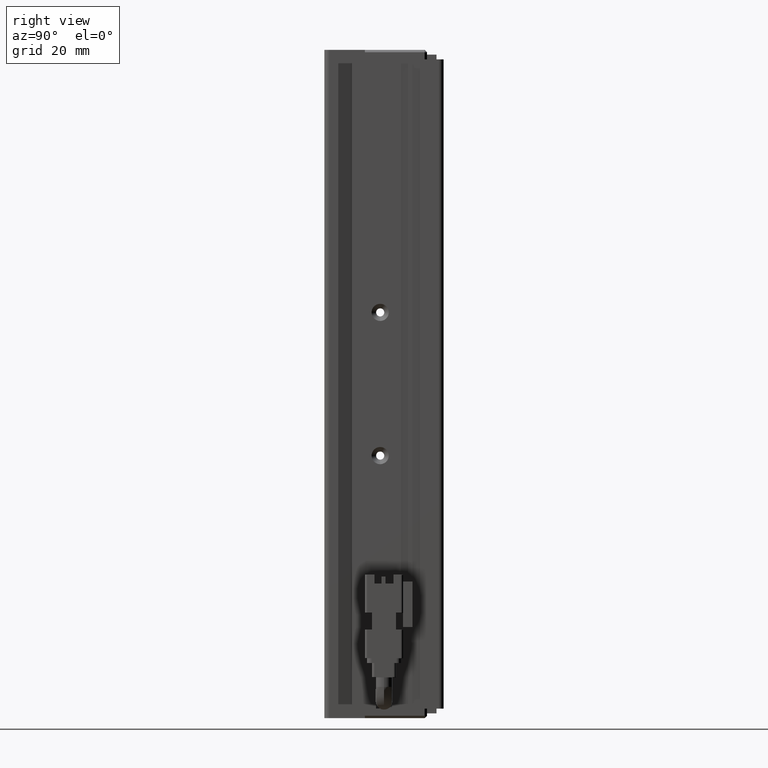
[diagram: clean part render]
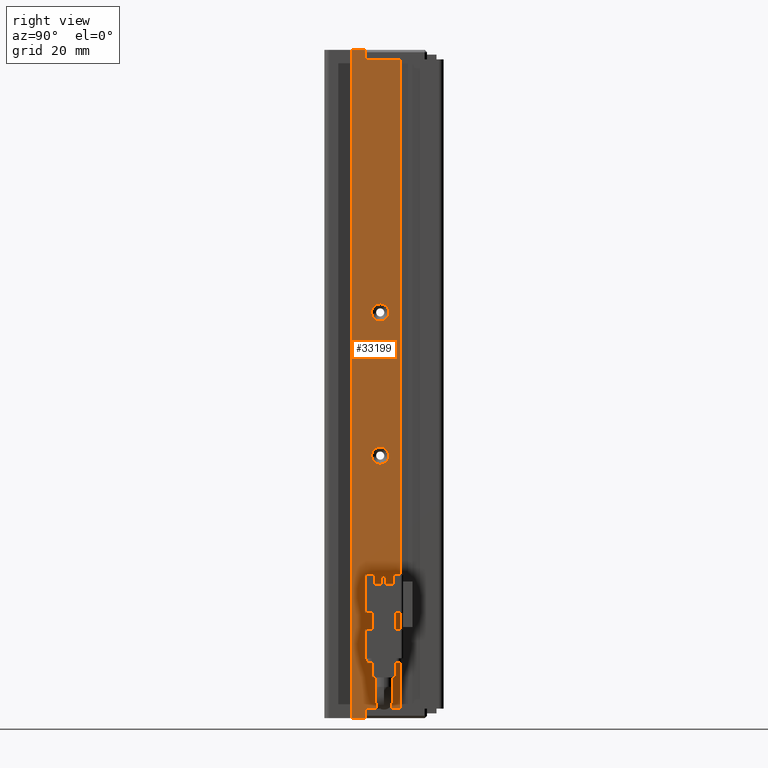
[diagram: same view with one face highlighted and labeled with its STEP entity id]
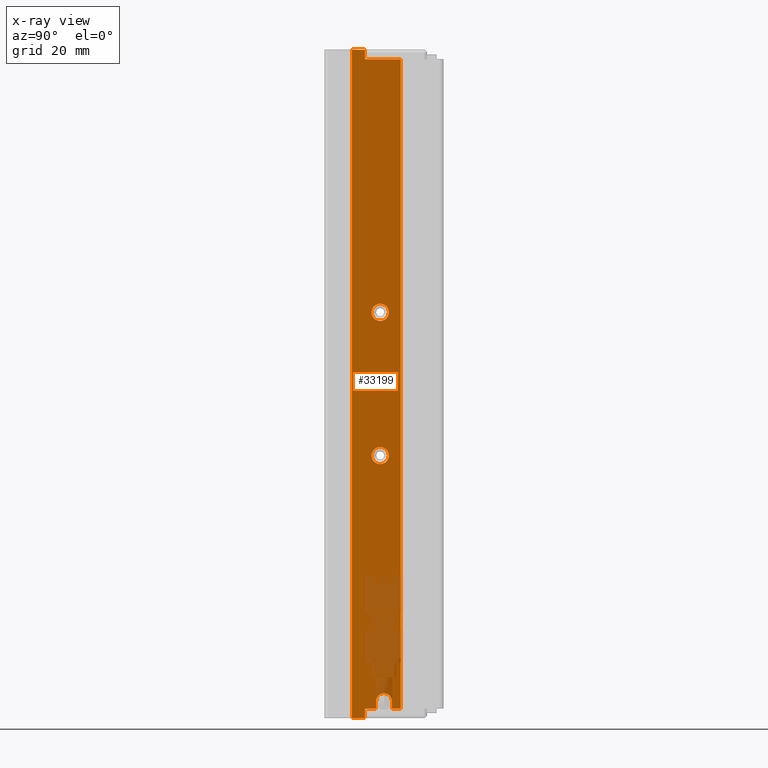
[diagram: x-ray of the same camera — body ghosted, the highlighted face saturated]
A machine part, right view. The second image highlights one B-rep face of the part: STEP entity #33199.
The next image is the same camera in x-ray: the body ghosted, the highlighted face saturated — about 11% of this face is hidden behind the body in this view.
In plain terms, the highlighted planar face has unit normal (-1, 0, 0).
Its self-contained STEP definition (entity closure, byte-faithful):
#56 = VECTOR ( 'NONE', #11524, 1000.000000000000000 ) ;
#69 = LINE ( 'NONE', #8777, #6867 ) ;
#199 = DIRECTION ( 'NONE',  ( 0.0000000000000000000, 1.000000000000000000, -0.0000000000000000000 ) ) ;
#729 = VERTEX_POINT ( 'NONE', #16821 ) ;
#803 = CARTESIAN_POINT ( 'NONE',  ( 55.92537974683543200, 19.19594479660386500, -183.0000000000000000 ) ) ;
#910 = EDGE_LOOP ( 'NONE', ( #1735, #18292 ) ) ;
#1155 = ORIENTED_EDGE ( 'NONE', *, *, #9654, .F. ) ;
#1570 = VERTEX_POINT ( 'NONE', #14369 ) ;
#1588 = VECTOR ( 'NONE', #8921, 1000.000000000000000 ) ;
#1721 = EDGE_LOOP ( 'NONE', ( #37091, #13997 ) ) ;
#1735 = ORIENTED_EDGE ( 'NONE', *, *, #34516, .F. ) ;
#1818 = LINE ( 'NONE', #31704, #31506 ) ;
#3067 = EDGE_CURVE ( 'NONE', #10122, #13503, #8183, .T. ) ;
#3216 = DIRECTION ( 'NONE',  ( -1.394554826879015900E-015, -1.000000000000000000, 0.0000000000000000000 ) ) ;
#3659 = VERTEX_POINT ( 'NONE', #21990 ) ;
#3835 = VERTEX_POINT ( 'NONE', #12222 ) ;
#3878 = LINE ( 'NONE', #9155, #33502 ) ;
#4072 = DIRECTION ( 'NONE',  ( 1.000000000000000000, 0.0000000000000000000, 0.0000000000000000000 ) ) ;
#5004 = VERTEX_POINT ( 'NONE', #23881 ) ;
#5182 = EDGE_CURVE ( 'NONE', #729, #25701, #17000, .T. ) ;
#5312 = EDGE_CURVE ( 'NONE', #1570, #29719, #3878, .T. ) ;
#5557 = CARTESIAN_POINT ( 'NONE',  ( 55.92537974683541100, 7.083797468354417100, -47.00000000000000000 ) ) ;
#5704 = CARTESIAN_POINT ( 'NONE',  ( 55.92537974682178300, 22.39594479660386700, -131.7999999999892700 ) ) ;
#6038 = DIRECTION ( 'NONE',  ( 0.0000000000000000000, 1.000000000000000000, 0.0000000000000000000 ) ) ;
#6048 = DIRECTION ( 'NONE',  ( 1.000000000000000000, 0.0000000000000000000, 0.0000000000000000000 ) ) ;
#6161 = DIRECTION ( 'NONE',  ( 1.000000000000000000, 5.687617954022316600E-016, -0.0000000000000000000 ) ) ;
#6295 = CARTESIAN_POINT ( 'NONE',  ( 55.92537974683539700, 23.19594479660386500, -181.4499999999999900 ) ) ;
#6377 = VECTOR ( 'NONE', #3216, 1000.000000000000000 ) ;
#6437 = LINE ( 'NONE', #30781, #13236 ) ;
#6743 = EDGE_CURVE ( 'NONE', #29719, #5004, #69, .T. ) ;
#6867 = VECTOR ( 'NONE', #14656, 1000.000000000000000 ) ;
#6980 = CIRCLE ( 'NONE', #24994, 1.799999999989254600 ) ;
#8018 = ORIENTED_EDGE ( 'NONE', *, *, #32158, .T. ) ;
#8182 = PLANE ( 'NONE',  #22060 ) ;
#8183 = CIRCLE ( 'NONE', #34613, 1.650000000000002100 ) ;
#8361 = CARTESIAN_POINT ( 'NONE',  ( 55.92537974683542500, 19.19594479660386500, -47.00000000000000000 ) ) ;
#8777 = CARTESIAN_POINT ( 'NONE',  ( 55.92537974683541100, 7.083797468354417100, -183.0000000000000000 ) ) ;
#8921 = DIRECTION ( 'NONE',  ( 0.0000000000000000000, 0.0000000000000000000, 1.000000000000000000 ) ) ;
#8932 = LINE ( 'NONE', #34336, #23354 ) ;
#9004 = CARTESIAN_POINT ( 'NONE',  ( 55.92537974683542500, 16.49594479660387200, -45.00000000000000000 ) ) ;
#9155 = CARTESIAN_POINT ( 'NONE',  ( 55.92537974683543900, 26.69594479660386800, -45.00000000000000000 ) ) ;
#9282 = VECTOR ( 'NONE', #32410, 1000.000000000000000 ) ;
#9654 = EDGE_CURVE ( 'NONE', #3659, #29520, #20809, .T. ) ;
#10122 = VERTEX_POINT ( 'NONE', #35306 ) ;
#10211 = LINE ( 'NONE', #18191, #9282 ) ;
#11524 = DIRECTION ( 'NONE',  ( 1.394554826879015900E-015, 1.000000000000000000, -0.0000000000000000000 ) ) ;
#12222 = CARTESIAN_POINT ( 'NONE',  ( 55.92537974682178300, 22.39594479660386700, -128.2000000000107600 ) ) ;
#13126 = CARTESIAN_POINT ( 'NONE',  ( 55.92537974683539700, 21.54594479660386200, -181.4499999999999900 ) ) ;
#13210 = ORIENTED_EDGE ( 'NONE', *, *, #35533, .T. ) ;
#13236 = VECTOR ( 'NONE', #16549, 1000.000000000000000 ) ;
#13347 = EDGE_CURVE ( 'NONE', #35255, #729, #10211, .T. ) ;
#13503 = VERTEX_POINT ( 'NONE', #13126 ) ;
#13650 = EDGE_CURVE ( 'NONE', #32327, #3835, #6980, .T. ) ;
#13997 = ORIENTED_EDGE ( 'NONE', *, *, #14945, .F. ) ;
#14064 = DIRECTION ( 'NONE',  ( 1.000000000000000000, 0.0000000000000000000, 0.0000000000000000000 ) ) ;
#14118 = CARTESIAN_POINT ( 'NONE',  ( 55.92537974683541100, 7.083797468354417100, -45.00000000000000000 ) ) ;
#14253 = ORIENTED_EDGE ( 'NONE', *, *, #25438, .T. ) ;
#14369 = CARTESIAN_POINT ( 'NONE',  ( 55.92537974683543900, 26.69594479660386800, -47.00000000000000000 ) ) ;
#14535 = ORIENTED_EDGE ( 'NONE', *, *, #3067, .F. ) ;
#14656 = DIRECTION ( 'NONE',  ( -1.394554826879015900E-015, -1.000000000000000000, 0.0000000000000000000 ) ) ;
#14674 = CARTESIAN_POINT ( 'NONE',  ( 55.92537974683542500, 7.083797468354437600, -45.00000000000000000 ) ) ;
#14945 = EDGE_CURVE ( 'NONE', #3835, #32327, #28407, .T. ) ;
#15499 = LINE ( 'NONE', #5557, #56 ) ;
#15692 = FACE_OUTER_BOUND ( 'NONE', #28399, .T. ) ;
#15882 = CARTESIAN_POINT ( 'NONE',  ( 55.92537974687862600, 22.39594479660386700, -98.19999999992660400 ) ) ;
#16549 = DIRECTION ( 'NONE',  ( -0.0000000000000000000, -2.238352872228144400E-015, 1.000000000000000000 ) ) ;
#16581 = FACE_BOUND ( 'NONE', #910, .T. ) ;
#16677 = VERTEX_POINT ( 'NONE', #15882 ) ;
#16821 = CARTESIAN_POINT ( 'NONE',  ( 55.92537974683542500, 16.49594479660387200, -185.0000000000000000 ) ) ;
#16911 = DIRECTION ( 'NONE',  ( 1.000000000000000000, 0.0000000000000000000, 0.0000000000000000000 ) ) ;
#17000 = LINE ( 'NONE', #9004, #1588 ) ;
#17009 = EDGE_CURVE ( 'NONE', #16677, #36326, #36635, .T. ) ;
#17032 = DIRECTION ( 'NONE',  ( -1.394554826879015900E-015, -1.000000000000000000, 0.0000000000000000000 ) ) ;
#17481 = DIRECTION ( 'NONE',  ( -0.0000000000000000000, -2.238352872228144400E-015, -1.000000000000000000 ) ) ;
#17566 = AXIS2_PLACEMENT_3D ( 'NONE', #21287, #4072, #24167 ) ;
#17639 = CARTESIAN_POINT ( 'NONE',  ( 55.92537974683541100, 7.083797468354417100, -183.0000000000000000 ) ) ;
#18191 = CARTESIAN_POINT ( 'NONE',  ( 55.92537974683541100, 7.083797468354417100, -185.0000000000000000 ) ) ;
#18292 = ORIENTED_EDGE ( 'NONE', *, *, #17009, .F. ) ;
#18414 = CARTESIAN_POINT ( 'NONE',  ( 55.92537974683542500, 19.19594479660386500, -45.00000000000000000 ) ) ;
#19195 = EDGE_CURVE ( 'NONE', #30336, #1570, #15499, .T. ) ;
#19206 = AXIS2_PLACEMENT_3D ( 'NONE', #23321, #6048, #26228 ) ;
#20011 = DIRECTION ( 'NONE',  ( -0.0000000000000000000, 0.0000000000000000000, 1.000000000000000000 ) ) ;
#20462 = CARTESIAN_POINT ( 'NONE',  ( 55.92537974687862600, 22.39594479660386700, -101.8000000000734000 ) ) ;
#20716 = VECTOR ( 'NONE', #199, 1000.000000000000000 ) ;
#20809 = LINE ( 'NONE', #17639, #6377 ) ;
#20827 = CIRCLE ( 'NONE', #17566, 1.800000000073395800 ) ;
#21105 = CARTESIAN_POINT ( 'NONE',  ( 55.92537974683542500, 16.49594479660387200, -45.00000000000000000 ) ) ;
#21276 = DIRECTION ( 'NONE',  ( -0.0000000000000000000, 0.0000000000000000000, 1.000000000000000000 ) ) ;
#21287 = CARTESIAN_POINT ( 'NONE',  ( 55.92537974687862600, 22.39594479660386700, -100.0000000000000000 ) ) ;
#21753 = VERTEX_POINT ( 'NONE', #18414 ) ;
#21990 = CARTESIAN_POINT ( 'NONE',  ( 55.92537974683542500, 21.54594479660386200, -183.0000000000000000 ) ) ;
#22060 = AXIS2_PLACEMENT_3D ( 'NONE', #14118, #34121, #17032 ) ;
#23271 = FACE_BOUND ( 'NONE', #1721, .T. ) ;
#23321 = CARTESIAN_POINT ( 'NONE',  ( 55.92537974687862600, 22.39594479660386700, -100.0000000000000000 ) ) ;
#23328 = ORIENTED_EDGE ( 'NONE', *, *, #23461, .T. ) ;
#23354 = VECTOR ( 'NONE', #20011, 1000.000000000000000 ) ;
#23461 = EDGE_CURVE ( 'NONE', #30336, #21753, #27034, .T. ) ;
#23881 = CARTESIAN_POINT ( 'NONE',  ( 55.92537974683541100, 24.84594479660386300, -183.0000000000000000 ) ) ;
#24167 = DIRECTION ( 'NONE',  ( 0.0000000000000000000, 0.0000000000000000000, -1.000000000000000000 ) ) ;
#24994 = AXIS2_PLACEMENT_3D ( 'NONE', #34005, #16911, #36872 ) ;
#25167 = CARTESIAN_POINT ( 'NONE',  ( 55.92537974683542500, 26.69594479660386800, -183.0000000000000000 ) ) ;
#25438 = EDGE_CURVE ( 'NONE', #35255, #29520, #8932, .T. ) ;
#25701 = VERTEX_POINT ( 'NONE', #21105 ) ;
#25828 = ORIENTED_EDGE ( 'NONE', *, *, #6743, .F. ) ;
#26228 = DIRECTION ( 'NONE',  ( 0.0000000000000000000, 0.0000000000000000000, -1.000000000000000000 ) ) ;
#26971 = AXIS2_PLACEMENT_3D ( 'NONE', #31186, #14064, #34060 ) ;
#27034 = LINE ( 'NONE', #35468, #32820 ) ;
#28399 = EDGE_LOOP ( 'NONE', ( #13210, #14535, #8018, #25828, #35519, #32283, #23328, #35833, #33706, #36003, #14253, #1155 ) ) ;
#28407 = CIRCLE ( 'NONE', #26971, 1.799999999989254600 ) ;
#28872 = EDGE_CURVE ( 'NONE', #25701, #21753, #30134, .T. ) ;
#28893 = DIRECTION ( 'NONE',  ( -0.0000000000000000000, -0.0000000000000000000, -1.000000000000000000 ) ) ;
#29520 = VERTEX_POINT ( 'NONE', #803 ) ;
#29719 = VERTEX_POINT ( 'NONE', #25167 ) ;
#30134 = LINE ( 'NONE', #14674, #20716 ) ;
#30336 = VERTEX_POINT ( 'NONE', #8361 ) ;
#30781 = CARTESIAN_POINT ( 'NONE',  ( 55.92537974683540400, 21.54594479660386600, -183.0000000000000000 ) ) ;
#31186 = CARTESIAN_POINT ( 'NONE',  ( 55.92537974682178300, 22.39594479660386700, -130.0000000000000000 ) ) ;
#31506 = VECTOR ( 'NONE', #17481, 1000.000000000000000 ) ;
#31704 = CARTESIAN_POINT ( 'NONE',  ( 55.92537974683539700, 24.84594479660386300, -183.0000000000000000 ) ) ;
#32158 = EDGE_CURVE ( 'NONE', #10122, #5004, #1818, .T. ) ;
#32280 = CARTESIAN_POINT ( 'NONE',  ( 55.92537974683543200, 19.19594479660386500, -185.0000000000000000 ) ) ;
#32283 = ORIENTED_EDGE ( 'NONE', *, *, #19195, .F. ) ;
#32327 = VERTEX_POINT ( 'NONE', #5704 ) ;
#32410 = DIRECTION ( 'NONE',  ( -1.394554826879015900E-015, -1.000000000000000000, 0.0000000000000000000 ) ) ;
#32820 = VECTOR ( 'NONE', #21276, 1000.000000000000000 ) ;
#33199 = ADVANCED_FACE ( 'NONE', ( #23271, #15692, #16581 ), #8182, .F. ) ;
#33502 = VECTOR ( 'NONE', #28893, 1000.000000000000000 ) ;
#33706 = ORIENTED_EDGE ( 'NONE', *, *, #5182, .F. ) ;
#34005 = CARTESIAN_POINT ( 'NONE',  ( 55.92537974682178300, 22.39594479660386700, -130.0000000000000000 ) ) ;
#34060 = DIRECTION ( 'NONE',  ( 0.0000000000000000000, 0.0000000000000000000, -1.000000000000000000 ) ) ;
#34121 = DIRECTION ( 'NONE',  ( -1.000000000000000000, 1.394554826879015900E-015, 0.0000000000000000000 ) ) ;
#34336 = CARTESIAN_POINT ( 'NONE',  ( 55.92537974683543200, 19.19594479660386500, -45.00000000000000000 ) ) ;
#34516 = EDGE_CURVE ( 'NONE', #36326, #16677, #20827, .T. ) ;
#34613 = AXIS2_PLACEMENT_3D ( 'NONE', #6295, #6161, #6038 ) ;
#35255 = VERTEX_POINT ( 'NONE', #32280 ) ;
#35306 = CARTESIAN_POINT ( 'NONE',  ( 55.92537974683539700, 24.84594479660386700, -181.4499999999999900 ) ) ;
#35468 = CARTESIAN_POINT ( 'NONE',  ( 55.92537974683542500, 19.19594479660386500, -45.00000000000000000 ) ) ;
#35519 = ORIENTED_EDGE ( 'NONE', *, *, #5312, .F. ) ;
#35533 = EDGE_CURVE ( 'NONE', #3659, #13503, #6437, .T. ) ;
#35833 = ORIENTED_EDGE ( 'NONE', *, *, #28872, .F. ) ;
#36003 = ORIENTED_EDGE ( 'NONE', *, *, #13347, .F. ) ;
#36326 = VERTEX_POINT ( 'NONE', #20462 ) ;
#36635 = CIRCLE ( 'NONE', #19206, 1.800000000073395800 ) ;
#36872 = DIRECTION ( 'NONE',  ( 0.0000000000000000000, 0.0000000000000000000, -1.000000000000000000 ) ) ;
#37091 = ORIENTED_EDGE ( 'NONE', *, *, #13650, .F. ) ;